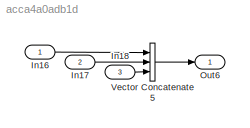
MODEL slx_acca4a0adb1d
KIND model
CONFIG AbsTol = auto
CONFIG EnableMultiTasking = on
CONFIG FixedStep = 0.1
CONFIG MaxStep = 1
CONFIG MinStep = auto
CONFIG RelTol = 1e-3
CONFIG SampleTimeConstraint = Unconstrained
CONFIG Solver = FixedStepAuto
CONFIG SolverName = FixedStepAuto
CONFIG StartTime = 0.0
CONFIG StopTime = 0
BLOCK [Inport] In16
  IconDisplay = Port number
  OutDataTypeStr = double
  PortDimensions = [5 2]
BLOCK [Inport] In17
  IconDisplay = Port number
  OutDataTypeStr = double
  Port = 2
  PortDimensions = [3 2]
BLOCK [Inport] In18
  IconDisplay = Port number
  OutDataTypeStr = double
  Port = 3
  PortDimensions = [1 2]
BLOCK [Outport] Out6
  IconDisplay = Port number
BLOCK [Concatenate] Vector Concatenate5
  Mode = Multidimensional array
  NumInputs = 3
  Ports = [3, 1]
LINE In16:1 -> Vector Concatenate5:1
LINE In17:1 -> Vector Concatenate5:2
LINE In18:1 -> Vector Concatenate5:3
LINE Vector Concatenate5:1 -> Out6:1
